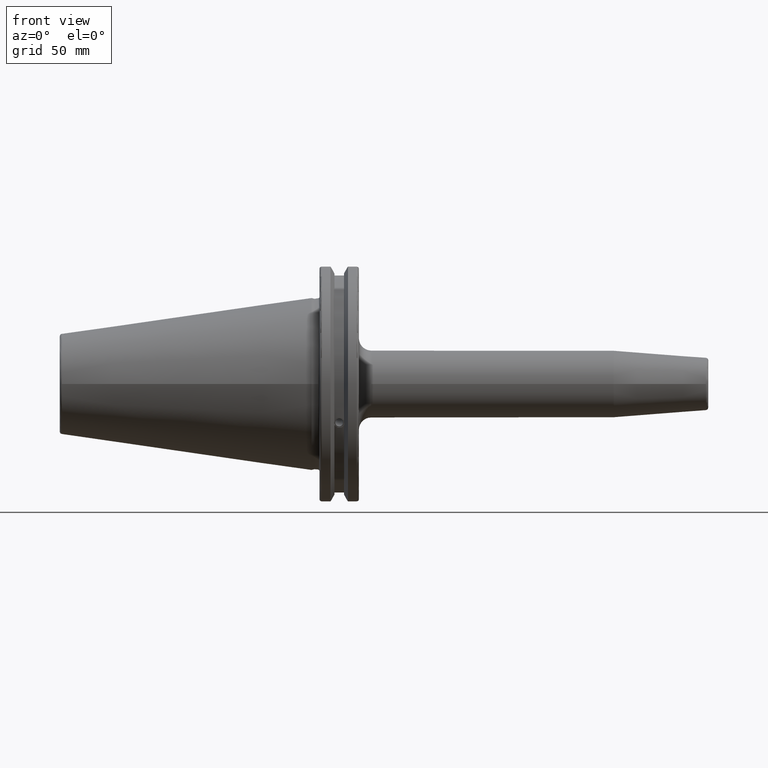
[diagram: clean part render]
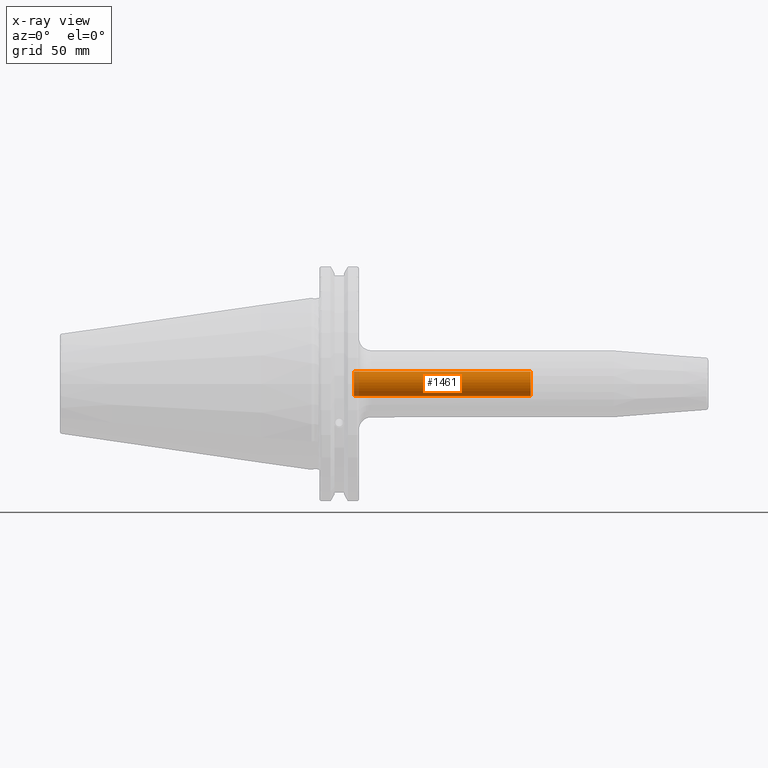
[diagram: x-ray — body ghosted, one internal face saturated and labeled with its STEP entity id]
A machine part, front view, then the same camera in x-ray: the body is ghosted and one INTERNAL B-rep face — a face not visible from any outside direction — is saturated and labeled: STEP entity #1461.
In plain terms, the highlighted cylindrical surface (bore or boss wall) has radius 5 mm, axis along (-1, 0, 0).
Its self-contained STEP definition (entity closure, byte-faithful):
#99=LINE('',#2222,#191);
#191=VECTOR('',#1805,5.);
#271=CYLINDRICAL_SURFACE('',#1590,5.);
#362=FACE_OUTER_BOUND('',#450,.T.);
#450=EDGE_LOOP('',(#1049,#1050,#1051,#1052));
#563=CIRCLE('',#1589,5.);
#564=CIRCLE('',#1591,5.);
#646=VERTEX_POINT('',#2216);
#647=VERTEX_POINT('',#2220);
#803=EDGE_CURVE('',#646,#646,#563,.T.);
#805=EDGE_CURVE('',#647,#647,#564,.T.);
#806=EDGE_CURVE('',#647,#646,#99,.T.);
#1049=ORIENTED_EDGE('',*,*,#805,.F.);
#1050=ORIENTED_EDGE('',*,*,#806,.T.);
#1051=ORIENTED_EDGE('',*,*,#803,.F.);
#1052=ORIENTED_EDGE('',*,*,#806,.F.);
#1461=ADVANCED_FACE('',(#362),#271,.F.);
#1589=AXIS2_PLACEMENT_3D('',#2217,#1798,#1799);
#1590=AXIS2_PLACEMENT_3D('',#2219,#1801,#1802);
#1591=AXIS2_PLACEMENT_3D('',#2221,#1803,#1804);
#1798=DIRECTION('center_axis',(-1.,0.,0.));
#1799=DIRECTION('ref_axis',(0.,0.,1.));
#1801=DIRECTION('center_axis',(-1.,0.,0.));
#1802=DIRECTION('ref_axis',(0.,0.,1.));
#1803=DIRECTION('center_axis',(1.,0.,0.));
#1804=DIRECTION('ref_axis',(0.,0.,1.));
#1805=DIRECTION('',(1.,0.,0.));
#2216=CARTESIAN_POINT('',(88.4,-6.12323399573676E-16,-5.));
#2217=CARTESIAN_POINT('Origin',(88.4,0.,0.));
#2219=CARTESIAN_POINT('Origin',(-6.6,0.,0.));
#2220=CARTESIAN_POINT('',(16.9964512351895,6.12323399573677E-16,-5.));
#2221=CARTESIAN_POINT('Origin',(16.9964512351895,0.,0.));
#2222=CARTESIAN_POINT('',(-6.6,-6.12323399573677E-16,-5.));